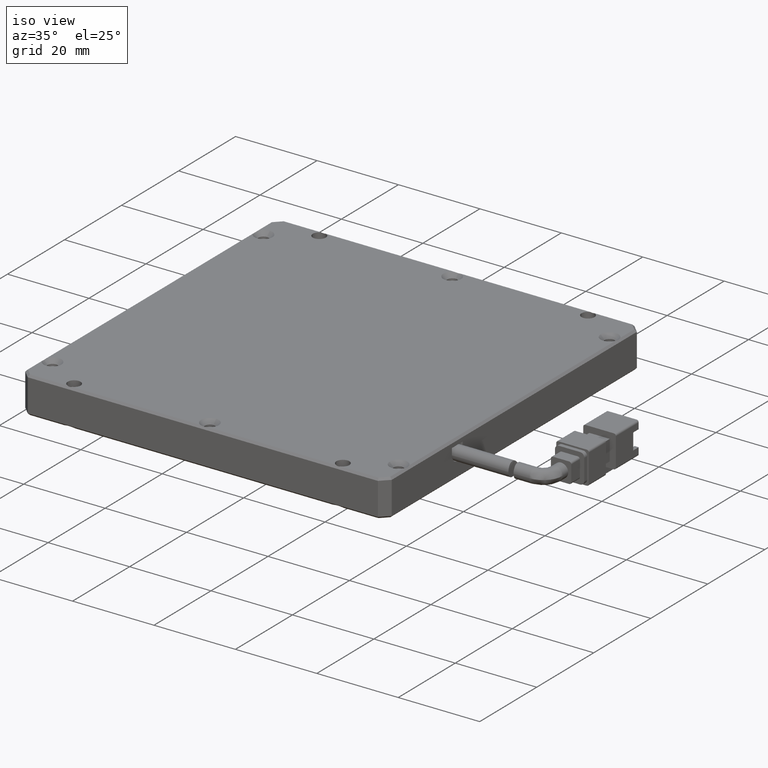
[diagram: clean part render]
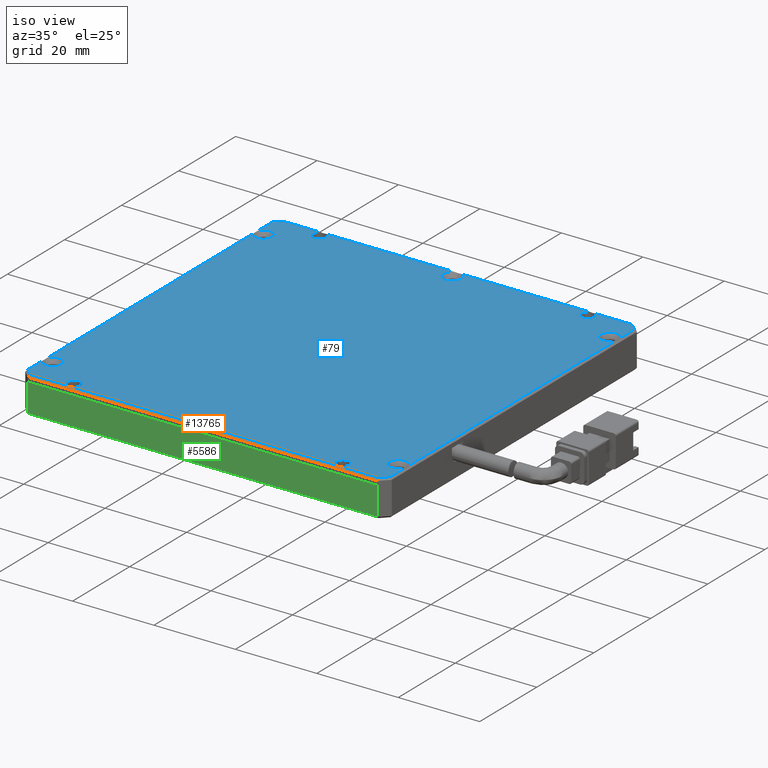
[diagram: same view with three faces highlighted in distinct colors, each labeled with its STEP entity id]
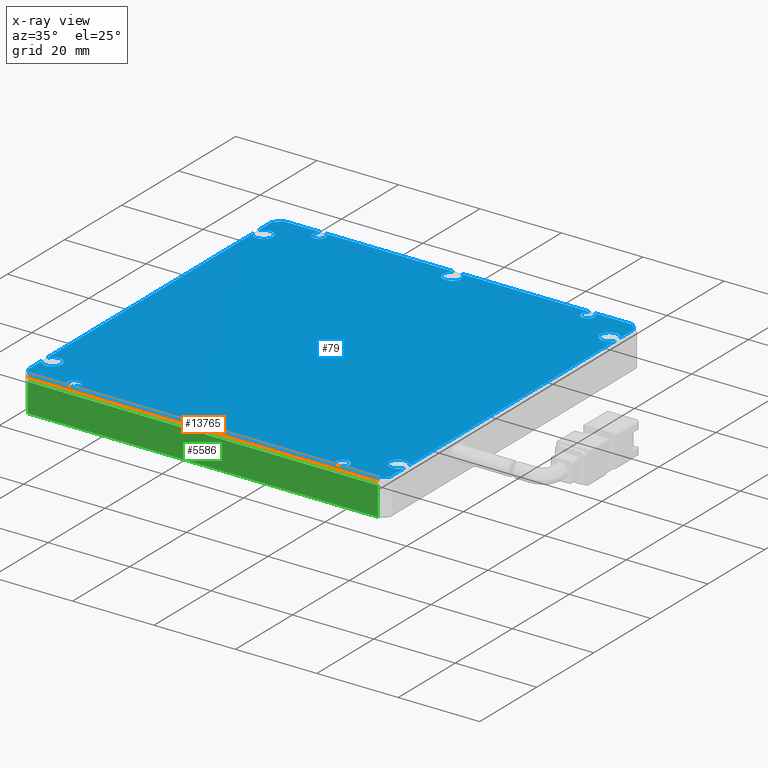
[diagram: x-ray of the same camera — body ghosted, the three highlighted faces saturated]
A machine part, iso view with three faces highlighted in distinct colors.
The next image is the same camera in x-ray (body ghosted, the three faces saturated) — at least one of them is partly hidden behind the body in this view.
Their STEP definitions:

[orange] entity #13765 — the highlighted planar face has unit normal (0, 0.7071, -0.7071).
#34 = DIRECTION ( 'NONE',  ( 1.000000000000000000, -0.0000000000000000000, 0.0000000000000000000 ) ) ;
#67 = CARTESIAN_POINT ( 'NONE',  ( -31.16274412037793700, -16.55999999997564500, 6.000000000035044900 ) ) ;
#111 = ORIENTED_EDGE ( 'NONE', *, *, #6922, .T. ) ;
#292 = DIRECTION ( 'NONE',  ( 1.000000000000000000, 0.0000000000000000000, -0.0000000000000000000 ) ) ;
#388 = ORIENTED_EDGE ( 'NONE', *, *, #2894, .F. ) ;
#594 = ORIENTED_EDGE ( 'NONE', *, *, #15575, .F. ) ;
#648 = CARTESIAN_POINT ( 'NONE',  ( -65.63603569554217600, -16.56000000000000600, 6.000000000000001800 ) ) ;
#679 = EDGE_CURVE ( 'NONE', #10660, #14766, #2501, .T. ) ;
#683 = CARTESIAN_POINT ( 'NONE',  ( -32.69620363494183800, -16.62537169989350600, 5.934628300106498800 ) ) ;
#902 = CARTESIAN_POINT ( 'NONE',  ( -65.63603569554217600, -16.56000000000000600, 6.000000000000001800 ) ) ;
#1172 = VERTEX_POINT ( 'NONE', #11381 ) ;
#1319 = VERTEX_POINT ( 'NONE', #14077 ) ;
#1510 = B_SPLINE_CURVE_WITH_KNOTS ( 'NONE', 3,
 ( #13921, #15328, #6990, #16761, #8383, #67 ),
 .UNSPECIFIED., .F., .F.,
 ( 4, 2, 4 ),
 ( 0.0009271194676587006200, 0.001387774260542111800, 0.001848429053425523100 ),
 .UNSPECIFIED. ) ;
#1883 = VERTEX_POINT ( 'NONE', #2351 ) ;
#2138 = DIRECTION ( 'NONE',  ( 0.2810846377149773800, -0.6785983445458051400, -0.6785983445458238000 ) ) ;
#2263 = CARTESIAN_POINT ( 'NONE',  ( 10.71363395955411800, -16.56000000000000600, 6.000000000000000900 ) ) ;
#2294 = EDGE_CURVE ( 'NONE', #15525, #1172, #12211, .T. ) ;
#2351 = CARTESIAN_POINT ( 'NONE',  ( 10.92074074074077200, -17.05999999999998500, 5.499999999999992000 ) ) ;
#2501 = LINE ( 'NONE', #17683, #6196 ) ;
#2629 = CARTESIAN_POINT ( 'NONE',  ( -77.07925925925924600, -16.56000000000000600, 6.000000000000001800 ) ) ;
#2819 = VECTOR ( 'NONE', #16567, 1000.000000000000000 ) ;
#2894 = EDGE_CURVE ( 'NONE', #7905, #1883, #4976, .T. ) ;
#2906 = VERTEX_POINT ( 'NONE', #902 ) ;
#2978 = CARTESIAN_POINT ( 'NONE',  ( -77.07925925925924600, -17.05999999999999200, 5.500000000000000900 ) ) ;
#3455 = CARTESIAN_POINT ( 'NONE',  ( -75.07925925925923100, -17.05999999999999200, 5.499999999999995600 ) ) ;
#3456 = VERTEX_POINT ( 'NONE', #7442 ) ;
#3487 = CARTESIAN_POINT ( 'NONE',  ( -32.07925925925925300, -16.65999999995137400, 5.900000000048631700 ) ) ;
#3606 = CARTESIAN_POINT ( 'NONE',  ( -31.16274412037793700, -16.55999999997564500, 6.000000000035044900 ) ) ;
#3904 = EDGE_CURVE ( 'NONE', #1319, #7315, #16522, .T. ) ;
#3996 = EDGE_LOOP ( 'NONE', ( #17884, #111, #388, #594, #17666, #17110, #14705, #14463, #13911, #13530, #12267 ) ) ;
#4297 = PLANE ( 'NONE',  #5216 ) ;
#4365 = CARTESIAN_POINT ( 'NONE',  ( -77.07925925925924600, -16.56000000000000600, 6.000000000000000900 ) ) ;
#4369 = LINE ( 'NONE', #2978, #11348 ) ;
#4976 = LINE ( 'NONE', #2263, #15196 ) ;
#4997 = LINE ( 'NONE', #13885, #8701 ) ;
#5216 = AXIS2_PLACEMENT_3D ( 'NONE', #4365, #14095, #5786 ) ;
#5431 = VECTOR ( 'NONE', #6846, 1000.000000000000000 ) ;
#5469 = CARTESIAN_POINT ( 'NONE',  ( -77.07925925925924600, -16.56000000000000600, 6.000000000000000900 ) ) ;
#5786 = DIRECTION ( 'NONE',  ( 0.0000000000000000000, 0.7071067811865378000, 0.7071067811865573400 ) ) ;
#5889 = EDGE_CURVE ( 'NONE', #3456, #12714, #1510, .T. ) ;
#5895 = CARTESIAN_POINT ( 'NONE',  ( 10.71363395955413000, -16.56000000000000600, 6.000000000000007100 ) ) ;
#6196 = VECTOR ( 'NONE', #17667, 1000.000000000000100 ) ;
#6605 = FACE_OUTER_BOUND ( 'NONE', #3996, .T. ) ;
#6782 =( BOUNDED_CURVE ( )  B_SPLINE_CURVE ( 3, ( #15906, #17332, #8953, #648 ),
 .UNSPECIFIED., .F., .T. ) 
 B_SPLINE_CURVE_WITH_KNOTS ( ( 4, 4 ),
 ( 2.786171451899620300, 3.497013855279965900 ),
 .UNSPECIFIED. ) 
 CURVE ( )  GEOMETRIC_REPRESENTATION_ITEM ( )  RATIONAL_B_SPLINE_CURVE ( ( 1.000000000000000000, 0.9583333333333451400, 0.9583333333333451400, 1.000000000000000000 ) ) 
 REPRESENTATION_ITEM ( '' )  );
#6846 = DIRECTION ( 'NONE',  ( 1.000000000000000000, -0.0000000000000000000, 0.0000000000000000000 ) ) ;
#6922 = EDGE_CURVE ( 'NONE', #14766, #1883, #4369, .T. ) ;
#6990 = CARTESIAN_POINT ( 'NONE',  ( -31.76824371790128900, -16.65126632610723300, 5.908733673892771600 ) ) ;
#7122 = EDGE_CURVE ( 'NONE', #15525, #2906, #6782, .T. ) ;
#7315 = VERTEX_POINT ( 'NONE', #14856 ) ;
#7442 = CARTESIAN_POINT ( 'NONE',  ( -32.07925925925925300, -16.65999999995137400, 5.900000000048631700 ) ) ;
#7905 = VERTEX_POINT ( 'NONE', #5895 ) ;
#8318 = EDGE_CURVE ( 'NONE', #12714, #7315, #13889, .T. ) ;
#8383 = CARTESIAN_POINT ( 'NONE',  ( -31.31168598636424600, -16.59250177973431300, 5.967498220265697200 ) ) ;
#8701 = VECTOR ( 'NONE', #34, 1000.000000000000000 ) ;
#8953 = CARTESIAN_POINT ( 'NONE',  ( -65.27292062840112400, -16.69478260869561100, 5.865217391304383000 ) ) ;
#9017 = EDGE_CURVE ( 'NONE', #1172, #3456, #15366, .T. ) ;
#10077 = CARTESIAN_POINT ( 'NONE',  ( -74.87215247807265000, -16.56000000000000600, 6.000000000000000900 ) ) ;
#10398 = CARTESIAN_POINT ( 'NONE',  ( -32.99577439805226200, -16.55999999998931900, 6.000000000010687500 ) ) ;
#10639 = CARTESIAN_POINT ( 'NONE',  ( 0.3639643044578144700, -16.56000000000000600, 6.000000000000001800 ) ) ;
#10660 = VERTEX_POINT ( 'NONE', #10077 ) ;
#10820 = CARTESIAN_POINT ( 'NONE',  ( 0.7270793715988613800, -16.69478260869561800, 5.865217391304379500 ) ) ;
#10953 = CARTESIAN_POINT ( 'NONE',  ( -77.07925925925924600, -16.56000000000000600, 6.000000000000001800 ) ) ;
#11348 = VECTOR ( 'NONE', #292, 1000.000000000000000 ) ;
#11381 = CARTESIAN_POINT ( 'NONE',  ( -32.99577439805226200, -16.55999999998931900, 6.000000000010687500 ) ) ;
#11805 = CARTESIAN_POINT ( 'NONE',  ( -32.39093844776113000, -16.65999999995138100, 5.900000000048621900 ) ) ;
#11860 = DIRECTION ( 'NONE',  ( 1.000000000000000000, -0.0000000000000000000, 0.0000000000000000000 ) ) ;
#12211 = LINE ( 'NONE', #10953, #15479 ) ;
#12267 = ORIENTED_EDGE ( 'NONE', *, *, #12304, .F. ) ;
#12304 = EDGE_CURVE ( 'NONE', #10660, #2906, #17011, .T. ) ;
#12714 = VERTEX_POINT ( 'NONE', #3606 ) ;
#13530 = ORIENTED_EDGE ( 'NONE', *, *, #7122, .T. ) ;
#13695 = CARTESIAN_POINT ( 'NONE',  ( -64.52248282297632900, -16.56000000000000600, 6.000000000000001800 ) ) ;
#13765 = ADVANCED_FACE ( 'NONE', ( #6605 ), #4297, .F. ) ;
#13885 = CARTESIAN_POINT ( 'NONE',  ( -77.07925925925924600, -16.56000000000000600, 6.000000000000001800 ) ) ;
#13889 = LINE ( 'NONE', #2629, #2819 ) ;
#13911 = ORIENTED_EDGE ( 'NONE', *, *, #2294, .F. ) ;
#13921 = CARTESIAN_POINT ( 'NONE',  ( -32.07925925925925300, -16.65999999995137400, 5.900000000048631700 ) ) ;
#14077 = CARTESIAN_POINT ( 'NONE',  ( 1.477517177023685000, -16.56000000000000600, 6.000000000000001800 ) ) ;
#14095 = DIRECTION ( 'NONE',  ( 0.0000000000000000000, 0.7071067811865573400, -0.7071067811865378000 ) ) ;
#14114 = CARTESIAN_POINT ( 'NONE',  ( 1.114402109882637800, -16.69478260869561800, 5.865217391304379500 ) ) ;
#14463 = ORIENTED_EDGE ( 'NONE', *, *, #9017, .F. ) ;
#14705 = ORIENTED_EDGE ( 'NONE', *, *, #5889, .F. ) ;
#14766 = VERTEX_POINT ( 'NONE', #3455 ) ;
#14856 = CARTESIAN_POINT ( 'NONE',  ( 0.3639643044578144700, -16.56000000000000600, 6.000000000000001800 ) ) ;
#15196 = VECTOR ( 'NONE', #2138, 1000.000000000000100 ) ;
#15328 = CARTESIAN_POINT ( 'NONE',  ( -31.92439624854519300, -16.65999999995138500, 5.900000000048621000 ) ) ;
#15366 = B_SPLINE_CURVE_WITH_KNOTS ( 'NONE', 3,
 ( #10398, #683, #11805, #3487 ),
 .UNSPECIFIED., .F., .F.,
 ( 4, 4 ),
 ( 1.797755594376626200E-013, 0.0009271194676587006200 ),
 .UNSPECIFIED. ) ;
#15479 = VECTOR ( 'NONE', #11860, 1000.000000000000000 ) ;
#15525 = VERTEX_POINT ( 'NONE', #13695 ) ;
#15575 = EDGE_CURVE ( 'NONE', #1319, #7905, #4997, .T. ) ;
#15906 = CARTESIAN_POINT ( 'NONE',  ( -64.52248282297632900, -16.56000000000000600, 6.000000000000001800 ) ) ;
#16522 =( BOUNDED_CURVE ( )  B_SPLINE_CURVE ( 3, ( #17485, #14114, #10820, #10639 ),
 .UNSPECIFIED., .F., .F. ) 
 B_SPLINE_CURVE_WITH_KNOTS ( ( 4, 4 ),
 ( 2.786171451899612400, 3.497013855279973900 ),
 .UNSPECIFIED. ) 
 CURVE ( )  GEOMETRIC_REPRESENTATION_ITEM ( )  RATIONAL_B_SPLINE_CURVE ( ( 1.000000000000000000, 0.9583333333333432500, 0.9583333333333432500, 1.000000000000000000 ) ) 
 REPRESENTATION_ITEM ( '' )  );
#16567 = DIRECTION ( 'NONE',  ( 1.000000000000000000, -0.0000000000000000000, 0.0000000000000000000 ) ) ;
#16761 = CARTESIAN_POINT ( 'NONE',  ( -31.46251307384215300, -16.61749904155066200, 5.942500958449340200 ) ) ;
#17011 = LINE ( 'NONE', #5469, #5431 ) ;
#17110 = ORIENTED_EDGE ( 'NONE', *, *, #8318, .F. ) ;
#17332 = CARTESIAN_POINT ( 'NONE',  ( -64.88559789011736700, -16.69478260869561100, 5.865217391304383000 ) ) ;
#17485 = CARTESIAN_POINT ( 'NONE',  ( 1.477517177023685000, -16.56000000000000600, 6.000000000000001800 ) ) ;
#17666 = ORIENTED_EDGE ( 'NONE', *, *, #3904, .T. ) ;
#17667 = DIRECTION ( 'NONE',  ( -0.2810846377148714100, -0.6785983445458105800, -0.6785983445458624300 ) ) ;
#17683 = CARTESIAN_POINT ( 'NONE',  ( -74.87215247807263600, -16.56000000000001300, 5.999999999999994700 ) ) ;
#17884 = ORIENTED_EDGE ( 'NONE', *, *, #679, .T. ) ;

[blue] entity #79 — the highlighted planar face has unit normal (0, 0, -1).
#34 = DIRECTION ( 'NONE',  ( 1.000000000000000000, -0.0000000000000000000, 0.0000000000000000000 ) ) ;
#68 = ORIENTED_EDGE ( 'NONE', *, *, #14990, .T. ) ;
#79 = ADVANCED_FACE ( 'NONE', ( #5788 ), #3889, .F. ) ;
#87 = CARTESIAN_POINT ( 'NONE',  ( -65.07925925925926000, 70.93999999999999800, 6.000000000000001800 ) ) ;
#120 = DIRECTION ( 'NONE',  ( -0.0000000000000000000, 0.0000000000000000000, -1.000000000000000000 ) ) ;
#151 = CIRCLE ( 'NONE', #8730, 2.199999999918420100 ) ;
#175 = CARTESIAN_POINT ( 'NONE',  ( -64.52248282297632900, 72.44000000000001200, 6.000000000000001800 ) ) ;
#177 = VERTEX_POINT ( 'NONE', #11985 ) ;
#188 = DIRECTION ( 'NONE',  ( 0.0000000000000000000, -1.000000000000000000, 0.0000000000000000000 ) ) ;
#235 = CARTESIAN_POINT ( 'NONE',  ( -76.57925925925926000, 72.93999999999999800, 6.000000000000000900 ) ) ;
#255 = DIRECTION ( 'NONE',  ( -0.0000000000000000000, -4.928191693298675800E-017, -1.000000000000000000 ) ) ;
#324 = CARTESIAN_POINT ( 'NONE',  ( -32.07925925925925300, -14.56000000000000400, 6.000000000021374000 ) ) ;
#434 = VERTEX_POINT ( 'NONE', #3259 ) ;
#460 = ORIENTED_EDGE ( 'NONE', *, *, #13989, .T. ) ;
#575 = CARTESIAN_POINT ( 'NONE',  ( 12.42074074074076000, 72.93999999999999800, 6.000000000000001800 ) ) ;
#727 = DIRECTION ( 'NONE',  ( -0.0000000000000000000, 0.0000000000000000000, -1.000000000000000000 ) ) ;
#768 = AXIS2_PLACEMENT_3D ( 'NONE', #10324, #1995, #11720 ) ;
#902 = CARTESIAN_POINT ( 'NONE',  ( -65.63603569554217600, -16.56000000000000600, 6.000000000000001800 ) ) ;
#913 = CIRCLE ( 'NONE', #8759, 2.200000000013913000 ) ;
#989 = EDGE_CURVE ( 'NONE', #8636, #6866, #11420, .T. ) ;
#992 = ORIENTED_EDGE ( 'NONE', *, *, #4423, .T. ) ;
#1005 = DIRECTION ( 'NONE',  ( 1.000000000000000000, 0.0000000000000000000, 0.0000000000000000000 ) ) ;
#1062 = DIRECTION ( 'NONE',  ( -0.0000000000000000000, 0.0000000000000000000, -1.000000000000000000 ) ) ;
#1081 = LINE ( 'NONE', #1723, #8473 ) ;
#1172 = VERTEX_POINT ( 'NONE', #11381 ) ;
#1175 = CARTESIAN_POINT ( 'NONE',  ( -74.57925925925924600, 64.93999999999999800, 6.000000000021374000 ) ) ;
#1210 = DIRECTION ( 'NONE',  ( 0.0000000000000000000, 0.0000000000000000000, -1.000000000000000000 ) ) ;
#1287 = VERTEX_POINT ( 'NONE', #15404 ) ;
#1313 = CARTESIAN_POINT ( 'NONE',  ( 12.42074074074076000, 70.73289321881337300, 6.000000000000001800 ) ) ;
#1319 = VERTEX_POINT ( 'NONE', #14077 ) ;
#1356 = CARTESIAN_POINT ( 'NONE',  ( 0.3639643044578144700, 72.44000000000001200, 6.000000000000001800 ) ) ;
#1456 = EDGE_CURVE ( 'NONE', #7905, #2059, #2236, .T. ) ;
#1489 = DIRECTION ( 'NONE',  ( 1.000000000000000000, 0.0000000000000000000, 0.0000000000000000000 ) ) ;
#1521 = CARTESIAN_POINT ( 'NONE',  ( 2.520740740740739800, 70.93999999999999800, 6.000000000000001800 ) ) ;
#1546 = CARTESIAN_POINT ( 'NONE',  ( -66.67925925925924000, -15.05999999999999000, 6.000000000000001800 ) ) ;
#1586 = CARTESIAN_POINT ( 'NONE',  ( -76.57925925925924600, -14.85289321881338300, 5.999999999999994700 ) ) ;
#1594 = VERTEX_POINT ( 'NONE', #8325 ) ;
#1682 = CARTESIAN_POINT ( 'NONE',  ( -32.07925925925925300, -14.56000000000000400, 6.000000000021374000 ) ) ;
#1723 = CARTESIAN_POINT ( 'NONE',  ( -77.07925925925924600, 72.44000000000001200, 6.000000000000001800 ) ) ;
#1775 = ORIENTED_EDGE ( 'NONE', *, *, #14627, .T. ) ;
#1795 = LINE ( 'NONE', #9630, #8254 ) ;
#1943 = VERTEX_POINT ( 'NONE', #6279 ) ;
#1995 = DIRECTION ( 'NONE',  ( -0.0000000000000000000, 0.0000000000000000000, -1.000000000000000000 ) ) ;
#2015 = AXIS2_PLACEMENT_3D ( 'NONE', #14119, #5810, #15517 ) ;
#2059 = VERTEX_POINT ( 'NONE', #11613 ) ;
#2092 = LINE ( 'NONE', #1586, #12295 ) ;
#2112 = DIRECTION ( 'NONE',  ( 0.7071067811865520100, 0.7071067811865431300, -2.514910967507945700E-015 ) ) ;
#2191 = VERTEX_POINT ( 'NONE', #11304 ) ;
#2236 = LINE ( 'NONE', #8841, #5935 ) ;
#2294 = EDGE_CURVE ( 'NONE', #15525, #1172, #12211, .T. ) ;
#2307 = AXIS2_PLACEMENT_3D ( 'NONE', #12791, #4440, #14174 ) ;
#2346 = ORIENTED_EDGE ( 'NONE', *, *, #14831, .T. ) ;
#2473 = EDGE_CURVE ( 'NONE', #2191, #16635, #12646, .T. ) ;
#2485 = AXIS2_PLACEMENT_3D ( 'NONE', #15097, #6751, #16511 ) ;
#2547 = EDGE_CURVE ( 'NONE', #8087, #16817, #7189, .T. ) ;
#2569 = DIRECTION ( 'NONE',  ( 0.0000000000000000000, -1.000000000000000000, 0.0000000000000000000 ) ) ;
#2629 = CARTESIAN_POINT ( 'NONE',  ( -77.07925925925924600, -16.56000000000000600, 6.000000000000001800 ) ) ;
#2681 = AXIS2_PLACEMENT_3D ( 'NONE', #3583, #13269, #4932 ) ;
#2690 = ORIENTED_EDGE ( 'NONE', *, *, #2547, .T. ) ;
#2799 = VERTEX_POINT ( 'NONE', #1521 ) ;
#2802 = VERTEX_POINT ( 'NONE', #175 ) ;
#2819 = VECTOR ( 'NONE', #16567, 1000.000000000000000 ) ;
#2906 = VERTEX_POINT ( 'NONE', #902 ) ;
#2910 = VECTOR ( 'NONE', #16687, 1000.000000000000100 ) ;
#2919 = VERTEX_POINT ( 'NONE', #3543 ) ;
#2993 = DIRECTION ( 'NONE',  ( 0.7071067811865445800, -0.7071067811865503500, 0.0000000000000000000 ) ) ;
#2999 = ORIENTED_EDGE ( 'NONE', *, *, #13010, .T. ) ;
#3053 = ORIENTED_EDGE ( 'NONE', *, *, #6303, .T. ) ;
#3056 = AXIS2_PLACEMENT_3D ( 'NONE', #7579, #17343, #8975 ) ;
#3095 = DIRECTION ( 'NONE',  ( 3.154042683711152100E-015, -1.000000000000000000, 0.0000000000000000000 ) ) ;
#3107 = CARTESIAN_POINT ( 'NONE',  ( -74.57925925925924600, -9.059999999999991600, 6.000000000021374000 ) ) ;
#3259 = CARTESIAN_POINT ( 'NONE',  ( -76.57925925924857300, -8.143484860977787700, 6.000000000010687500 ) ) ;
#3323 = CIRCLE ( 'NONE', #768, 2.199999999936586000 ) ;
#3385 = CARTESIAN_POINT ( 'NONE',  ( 0.9207407407407497400, 70.93999999999999800, 6.000000000000001800 ) ) ;
#3432 = CARTESIAN_POINT ( 'NONE',  ( -77.07925925925924600, 72.44000000000001200, 6.000000000000000900 ) ) ;
#3442 = AXIS2_PLACEMENT_3D ( 'NONE', #3869, #13577, #5242 ) ;
#3509 = EDGE_CURVE ( 'NONE', #17714, #10181, #14699, .T. ) ;
#3527 = AXIS2_PLACEMENT_3D ( 'NONE', #1682, #11418, #3095 ) ;
#3538 = DIRECTION ( 'NONE',  ( -1.000000000000000000, -0.0000000000000000000, -0.0000000000000000000 ) ) ;
#3543 = CARTESIAN_POINT ( 'NONE',  ( -63.47925925925926500, 70.93999999999999800, 6.000000000000001800 ) ) ;
#3575 = DIRECTION ( 'NONE',  ( -0.0000000000000000000, -1.000000000000000000, -0.0000000000000000000 ) ) ;
#3577 = VECTOR ( 'NONE', #4829, 1000.000000000000000 ) ;
#3583 = CARTESIAN_POINT ( 'NONE',  ( -74.57925925925924600, 64.93999999999999800, 6.000000000021374000 ) ) ;
#3606 = CARTESIAN_POINT ( 'NONE',  ( -31.16274412037793700, -16.55999999997564500, 6.000000000035044900 ) ) ;
#3645 = CIRCLE ( 'NONE', #14175, 2.199999999936587800 ) ;
#3647 = DIRECTION ( 'NONE',  ( -1.000000000000000000, -0.0000000000000000000, -0.0000000000000000000 ) ) ;
#3717 = CARTESIAN_POINT ( 'NONE',  ( 12.42074074073007500, 64.02348486116335400, 6.000000000010688300 ) ) ;
#3783 = CIRCLE ( 'NONE', #11320, 1.599999999999990300 ) ;
#3844 = CARTESIAN_POINT ( 'NONE',  ( -76.57925925925926000, -14.85289321881337300, 5.999999999999999100 ) ) ;
#3868 = LINE ( 'NONE', #11946, #11282 ) ;
#3869 = CARTESIAN_POINT ( 'NONE',  ( -32.07925925925925300, 70.44000000000001200, 6.000000000021374000 ) ) ;
#3889 = PLANE ( 'NONE',  #5172 ) ;
#3937 = DIRECTION ( 'NONE',  ( -0.0000000000000000000, -4.928191693084763900E-017, -1.000000000000000000 ) ) ;
#4043 = DIRECTION ( 'NONE',  ( 0.0000000000000000000, 0.0000000000000000000, -1.000000000000000000 ) ) ;
#4050 = CARTESIAN_POINT ( 'NONE',  ( -65.07925925925926000, -15.05999999999999000, 6.000000000000001800 ) ) ;
#4057 = ORIENTED_EDGE ( 'NONE', *, *, #17100, .T. ) ;
#4124 = AXIS2_PLACEMENT_3D ( 'NONE', #12369, #4043, #13740 ) ;
#4136 = EDGE_LOOP ( 'NONE', ( #4964, #14685, #6882, #10690, #6802, #5625, #1775, #16370, #17669, #15185, #11112, #13398, #13156, #12753, #10111, #9265, #7510, #6230, #5304, #4057, #2690, #992, #11192, #68, #17528, #15807, #14658, #14269, #10338, #9018, #8360, #460, #14686, #7378, #8452, #16890, #3053, #13855, #13039, #10811, #9070, #2999, #2346 ) ) ;
#4193 = VERTEX_POINT ( 'NONE', #8094 ) ;
#4197 = CARTESIAN_POINT ( 'NONE',  ( -74.87215247807269200, 72.44000000000001200, 6.000000000000000000 ) ) ;
#4264 = CARTESIAN_POINT ( 'NONE',  ( -0.6792592592592405800, -15.05999999999999000, 6.000000000000001800 ) ) ;
#4346 = AXIS2_PLACEMENT_3D ( 'NONE', #4050, #13754, #5435 ) ;
#4423 = EDGE_CURVE ( 'NONE', #16817, #14921, #17705, .T. ) ;
#4440 = DIRECTION ( 'NONE',  ( 0.0000000000000000000, 0.0000000000000000000, -1.000000000000000000 ) ) ;
#4481 = DIRECTION ( 'NONE',  ( 1.000000000000000000, 0.0000000000000000000, 0.0000000000000000000 ) ) ;
#4513 = CARTESIAN_POINT ( 'NONE',  ( -32.99577439814055400, 72.43999999997566900, 6.000000000035041300 ) ) ;
#4571 = EDGE_CURVE ( 'NONE', #16635, #5133, #9603, .T. ) ;
#4734 = DIRECTION ( 'NONE',  ( 1.000000000000000000, 0.0000000000000000000, 0.0000000000000000000 ) ) ;
#4829 = DIRECTION ( 'NONE',  ( 0.0000000000000000000, 1.000000000000000000, 0.0000000000000000000 ) ) ;
#4932 = DIRECTION ( 'NONE',  ( 0.0000000000000000000, -1.000000000000000000, 0.0000000000000000000 ) ) ;
#4946 = EDGE_CURVE ( 'NONE', #17879, #12714, #151, .T. ) ;
#4964 = ORIENTED_EDGE ( 'NONE', *, *, #9858, .T. ) ;
#4997 = LINE ( 'NONE', #13885, #8701 ) ;
#5059 = CARTESIAN_POINT ( 'NONE',  ( 12.42074074073007500, -9.976515138836632000, 6.000000000010686600 ) ) ;
#5133 = VERTEX_POINT ( 'NONE', #11185 ) ;
#5172 = AXIS2_PLACEMENT_3D ( 'NONE', #5267, #5288, #5303 ) ;
#5242 = DIRECTION ( 'NONE',  ( 0.0000000000000000000, -1.000000000000000000, 0.0000000000000000000 ) ) ;
#5267 = CARTESIAN_POINT ( 'NONE',  ( -77.07925925925924600, 72.93999999999999800, 6.000000000000000900 ) ) ;
#5288 = DIRECTION ( 'NONE',  ( 0.0000000000000000000, 0.0000000000000000000, -1.000000000000000000 ) ) ;
#5303 = DIRECTION ( 'NONE',  ( -1.000000000000000000, 0.0000000000000000000, -0.0000000000000000000 ) ) ;
#5304 = ORIENTED_EDGE ( 'NONE', *, *, #10075, .T. ) ;
#5430 = VERTEX_POINT ( 'NONE', #15600 ) ;
#5431 = VECTOR ( 'NONE', #6846, 1000.000000000000000 ) ;
#5435 = DIRECTION ( 'NONE',  ( 1.000000000000000000, 0.0000000000000000000, 0.0000000000000000000 ) ) ;
#5469 = CARTESIAN_POINT ( 'NONE',  ( -77.07925925925924600, -16.56000000000000600, 6.000000000000000900 ) ) ;
#5508 = DIRECTION ( 'NONE',  ( 0.0000000000000000000, 1.000000000000000000, 0.0000000000000000000 ) ) ;
#5606 = EDGE_CURVE ( 'NONE', #6643, #13226, #5993, .T. ) ;
#5614 = AXIS2_PLACEMENT_3D ( 'NONE', #9528, #1210, #10955 ) ;
#5625 = ORIENTED_EDGE ( 'NONE', *, *, #2294, .T. ) ;
#5726 = DIRECTION ( 'NONE',  ( -1.000000000000000000, -0.0000000000000000000, -0.0000000000000000000 ) ) ;
#5762 = DIRECTION ( 'NONE',  ( -0.0000000000000000000, -1.000000000000000000, -0.0000000000000000000 ) ) ;
#5788 = FACE_OUTER_BOUND ( 'NONE', #4136, .T. ) ;
#5810 = DIRECTION ( 'NONE',  ( -0.0000000000000000000, -4.928191693298675800E-017, -1.000000000000000000 ) ) ;
#5853 = CARTESIAN_POINT ( 'NONE',  ( -77.07925925925924600, 72.44000000000001200, 6.000000000000000900 ) ) ;
#5895 = CARTESIAN_POINT ( 'NONE',  ( 10.71363395955413000, -16.56000000000000600, 6.000000000000007100 ) ) ;
#5926 = VERTEX_POINT ( 'NONE', #1546 ) ;
#5935 = VECTOR ( 'NONE', #2112, 999.9999999999998900 ) ;
#5948 = EDGE_CURVE ( 'NONE', #10181, #7136, #12712, .T. ) ;
#5993 = CIRCLE ( 'NONE', #2681, 2.200000000013913000 ) ;
#6048 = AXIS2_PLACEMENT_3D ( 'NONE', #3107, #12821, #4481 ) ;
#6230 = ORIENTED_EDGE ( 'NONE', *, *, #14287, .T. ) ;
#6279 = CARTESIAN_POINT ( 'NONE',  ( -76.57925925924857300, 65.85651513902219300, 6.000000000010687500 ) ) ;
#6303 = EDGE_CURVE ( 'NONE', #1943, #13722, #913, .T. ) ;
#6443 = CARTESIAN_POINT ( 'NONE',  ( -65.07925925925926000, -15.05999999999999000, 6.000000000000001800 ) ) ;
#6457 = CIRCLE ( 'NONE', #10199, 1.599999999999990300 ) ;
#6487 = CIRCLE ( 'NONE', #11338, 1.599999999999990300 ) ;
#6518 = EDGE_CURVE ( 'NONE', #5133, #1943, #16355, .T. ) ;
#6552 = VERTEX_POINT ( 'NONE', #14701 ) ;
#6643 = VERTEX_POINT ( 'NONE', #12084 ) ;
#6657 = EDGE_CURVE ( 'NONE', #7136, #16257, #15935, .T. ) ;
#6751 = DIRECTION ( 'NONE',  ( 0.0000000000000000000, 0.0000000000000000000, -1.000000000000000000 ) ) ;
#6753 = VERTEX_POINT ( 'NONE', #18006 ) ;
#6775 = EDGE_CURVE ( 'NONE', #2059, #8636, #1795, .T. ) ;
#6802 = ORIENTED_EDGE ( 'NONE', *, *, #18115, .T. ) ;
#6846 = DIRECTION ( 'NONE',  ( 1.000000000000000000, -0.0000000000000000000, 0.0000000000000000000 ) ) ;
#6866 = VERTEX_POINT ( 'NONE', #9883 ) ;
#6882 = ORIENTED_EDGE ( 'NONE', *, *, #8631, .T. ) ;
#6896 = CARTESIAN_POINT ( 'NONE',  ( -74.57925925925924600, 67.14000000001391300, 6.000000000021374000 ) ) ;
#6926 = CIRCLE ( 'NONE', #13330, 2.200000000013913000 ) ;
#6955 = CARTESIAN_POINT ( 'NONE',  ( 0.9207407407407497400, -15.05999999999999000, 6.000000000000001800 ) ) ;
#7047 = CARTESIAN_POINT ( 'NONE',  ( -65.07925925925926000, -15.05999999999999000, 6.000000000000001800 ) ) ;
#7136 = VERTEX_POINT ( 'NONE', #14562 ) ;
#7183 = DIRECTION ( 'NONE',  ( -1.000000000000000000, -0.0000000000000000000, -0.0000000000000000000 ) ) ;
#7189 = LINE ( 'NONE', #575, #17877 ) ;
#7208 = CARTESIAN_POINT ( 'NONE',  ( 12.42074074074076000, 72.93999999999999800, 6.000000000000001800 ) ) ;
#7249 = VECTOR ( 'NONE', #5762, 1000.000000000000000 ) ;
#7315 = VERTEX_POINT ( 'NONE', #14856 ) ;
#7378 = ORIENTED_EDGE ( 'NONE', *, *, #2473, .T. ) ;
#7510 = ORIENTED_EDGE ( 'NONE', *, *, #10779, .T. ) ;
#7562 = EDGE_CURVE ( 'NONE', #14921, #6552, #1081, .T. ) ;
#7579 = CARTESIAN_POINT ( 'NONE',  ( -65.07925925925926000, 70.93999999999999800, 6.000000000000001800 ) ) ;
#7603 = CIRCLE ( 'NONE', #2307, 1.599999999999990300 ) ;
#7670 = LINE ( 'NONE', #12692, #7249 ) ;
#7722 = VECTOR ( 'NONE', #5726, 1000.000000000000000 ) ;
#7725 = CARTESIAN_POINT ( 'NONE',  ( -72.37925925924533000, -9.059999999999991600, 6.000000000021374000 ) ) ;
#7842 = DIRECTION ( 'NONE',  ( 1.000000000000000000, 1.084202172485510900E-015, 0.0000000000000000000 ) ) ;
#7905 = VERTEX_POINT ( 'NONE', #5895 ) ;
#8087 = VERTEX_POINT ( 'NONE', #10495 ) ;
#8094 = CARTESIAN_POINT ( 'NONE',  ( 12.42074074072067800, -8.143484861094615100, 6.000000000030775400 ) ) ;
#8098 = EDGE_CURVE ( 'NONE', #16257, #2802, #3868, .T. ) ;
#8254 = VECTOR ( 'NONE', #5508, 1000.000000000000000 ) ;
#8258 = EDGE_CURVE ( 'NONE', #13722, #6643, #6926, .T. ) ;
#8318 = EDGE_CURVE ( 'NONE', #12714, #7315, #13889, .T. ) ;
#8325 = CARTESIAN_POINT ( 'NONE',  ( -63.47925925925926500, -15.05999999999999000, 6.000000000000001800 ) ) ;
#8347 = DIRECTION ( 'NONE',  ( 1.000000000000000000, 0.0000000000000000000, 0.0000000000000000000 ) ) ;
#8360 = ORIENTED_EDGE ( 'NONE', *, *, #10945, .T. ) ;
#8426 = DIRECTION ( 'NONE',  ( 1.000000000000000000, 0.0000000000000000000, 0.0000000000000000000 ) ) ;
#8427 = CARTESIAN_POINT ( 'NONE',  ( -74.57925925925924600, -9.059999999999991600, 6.000000000021374000 ) ) ;
#8429 = CIRCLE ( 'NONE', #15251, 1.599999999999990300 ) ;
#8452 = ORIENTED_EDGE ( 'NONE', *, *, #4571, .T. ) ;
#8473 = VECTOR ( 'NONE', #7183, 1000.000000000000000 ) ;
#8579 = CIRCLE ( 'NONE', #11816, 2.199999999936587800 ) ;
#8631 = EDGE_CURVE ( 'NONE', #2906, #5926, #8429, .T. ) ;
#8636 = VERTEX_POINT ( 'NONE', #5059 ) ;
#8701 = VECTOR ( 'NONE', #34, 1000.000000000000000 ) ;
#8730 = AXIS2_PLACEMENT_3D ( 'NONE', #324, #255, #188 ) ;
#8759 = AXIS2_PLACEMENT_3D ( 'NONE', #12272, #3937, #13637 ) ;
#8841 = CARTESIAN_POINT ( 'NONE',  ( 10.71363395955411800, -16.56000000000001300, 6.000000000000010700 ) ) ;
#8958 = LINE ( 'NONE', #9062, #12227 ) ;
#8975 = DIRECTION ( 'NONE',  ( 1.000000000000000000, 0.0000000000000000000, 0.0000000000000000000 ) ) ;
#9018 = ORIENTED_EDGE ( 'NONE', *, *, #8098, .T. ) ;
#9030 = CARTESIAN_POINT ( 'NONE',  ( 10.42074074074077200, 64.93999999999999800, 6.000000000021375800 ) ) ;
#9062 = CARTESIAN_POINT ( 'NONE',  ( -76.57925925925926000, 72.93999999999999800, 6.000000000000001800 ) ) ;
#9070 = ORIENTED_EDGE ( 'NONE', *, *, #12372, .T. ) ;
#9178 = VECTOR ( 'NONE', #15944, 1000.000000000000000 ) ;
#9265 = ORIENTED_EDGE ( 'NONE', *, *, #989, .T. ) ;
#9297 = CARTESIAN_POINT ( 'NONE',  ( 10.71363395955414400, 72.43999999999998400, 5.999999999999999100 ) ) ;
#9321 = DIRECTION ( 'NONE',  ( 0.0000000000000000000, 0.0000000000000000000, -1.000000000000000000 ) ) ;
#9380 = EDGE_CURVE ( 'NONE', #2799, #1287, #11027, .T. ) ;
#9387 = CARTESIAN_POINT ( 'NONE',  ( 10.42074074074077200, 64.93999999999999800, 6.000000000021375800 ) ) ;
#9528 = CARTESIAN_POINT ( 'NONE',  ( 0.9207407407407497400, 70.93999999999999800, 6.000000000000001800 ) ) ;
#9603 = LINE ( 'NONE', #16735, #9178 ) ;
#9630 = CARTESIAN_POINT ( 'NONE',  ( 12.42074074074076000, 72.93999999999999800, 6.000000000000000900 ) ) ;
#9807 = DIRECTION ( 'NONE',  ( 0.0000000000000000000, 0.0000000000000000000, -1.000000000000000000 ) ) ;
#9847 = DIRECTION ( 'NONE',  ( 1.000000000000000000, -1.577021341787124000E-015, 0.0000000000000000000 ) ) ;
#9858 = EDGE_CURVE ( 'NONE', #12219, #10660, #2092, .T. ) ;
#9883 = CARTESIAN_POINT ( 'NONE',  ( 8.220740740804185300, -9.059999999999991600, 6.000000000021374000 ) ) ;
#10075 = EDGE_CURVE ( 'NONE', #17047, #177, #8579, .T. ) ;
#10077 = CARTESIAN_POINT ( 'NONE',  ( -74.87215247807265000, -16.56000000000000600, 6.000000000000000900 ) ) ;
#10111 = ORIENTED_EDGE ( 'NONE', *, *, #6775, .T. ) ;
#10119 = CARTESIAN_POINT ( 'NONE',  ( -76.57925925924664100, 64.02348486096892100, 6.000000000012625500 ) ) ;
#10181 = VERTEX_POINT ( 'NONE', #16178 ) ;
#10199 = AXIS2_PLACEMENT_3D ( 'NONE', #7047, #16816, #8426 ) ;
#10324 = CARTESIAN_POINT ( 'NONE',  ( 10.42074074074077200, -9.059999999999991600, 6.000000000021374000 ) ) ;
#10329 = CIRCLE ( 'NONE', #3056, 1.599999999999990300 ) ;
#10338 = ORIENTED_EDGE ( 'NONE', *, *, #6657, .T. ) ;
#10382 = EDGE_CURVE ( 'NONE', #13226, #434, #7670, .T. ) ;
#10443 = DIRECTION ( 'NONE',  ( 1.000000000000000000, 0.0000000000000000000, 0.0000000000000000000 ) ) ;
#10495 = CARTESIAN_POINT ( 'NONE',  ( 12.42074074072067800, 65.85651513890536500, 6.000000000030774500 ) ) ;
#10634 = CIRCLE ( 'NONE', #4346, 1.599999999999990300 ) ;
#10660 = VERTEX_POINT ( 'NONE', #10077 ) ;
#10678 = CIRCLE ( 'NONE', #4124, 1.599999999999990300 ) ;
#10690 = ORIENTED_EDGE ( 'NONE', *, *, #16640, .T. ) ;
#10779 = EDGE_CURVE ( 'NONE', #6866, #4193, #3323, .T. ) ;
#10809 = DIRECTION ( 'NONE',  ( 1.000000000000000000, 0.0000000000000000000, 0.0000000000000000000 ) ) ;
#10811 = ORIENTED_EDGE ( 'NONE', *, *, #10382, .T. ) ;
#10905 = DIRECTION ( 'NONE',  ( -0.0000000000000000000, -4.928191693084763900E-017, -1.000000000000000000 ) ) ;
#10920 = AXIS2_PLACEMENT_3D ( 'NONE', #13351, #13578, #15153 ) ;
#10945 = EDGE_CURVE ( 'NONE', #2802, #2919, #10678, .T. ) ;
#10953 = CARTESIAN_POINT ( 'NONE',  ( -77.07925925925924600, -16.56000000000000600, 6.000000000000001800 ) ) ;
#10955 = DIRECTION ( 'NONE',  ( 1.000000000000000000, 0.0000000000000000000, 0.0000000000000000000 ) ) ;
#11027 = CIRCLE ( 'NONE', #15027, 1.599999999999990300 ) ;
#11112 = ORIENTED_EDGE ( 'NONE', *, *, #12423, .T. ) ;
#11185 = CARTESIAN_POINT ( 'NONE',  ( -76.57925925925926000, 70.73289321881344400, 6.000000000000002700 ) ) ;
#11192 = ORIENTED_EDGE ( 'NONE', *, *, #7562, .T. ) ;
#11282 = VECTOR ( 'NONE', #3647, 1000.000000000000000 ) ;
#11304 = CARTESIAN_POINT ( 'NONE',  ( -65.63603569554217600, 72.44000000000001200, 6.000000000000001800 ) ) ;
#11320 = AXIS2_PLACEMENT_3D ( 'NONE', #87, #9807, #1489 ) ;
#11338 = AXIS2_PLACEMENT_3D ( 'NONE', #17690, #9321, #1005 ) ;
#11381 = CARTESIAN_POINT ( 'NONE',  ( -32.99577439805226200, -16.55999999998931900, 6.000000000010687500 ) ) ;
#11418 = DIRECTION ( 'NONE',  ( -0.0000000000000000000, -4.928191693298675800E-017, -1.000000000000000000 ) ) ;
#11420 = CIRCLE ( 'NONE', #10920, 2.199999999936586000 ) ;
#11441 = DIRECTION ( 'NONE',  ( -0.0000000000000000000, -1.000000000000000000, -0.0000000000000000000 ) ) ;
#11613 = CARTESIAN_POINT ( 'NONE',  ( 12.42074074074076000, -14.85289321881339000, 6.000000000000002700 ) ) ;
#11655 = VERTEX_POINT ( 'NONE', #4264 ) ;
#11720 = DIRECTION ( 'NONE',  ( 1.000000000000000000, 0.0000000000000000000, 0.0000000000000000000 ) ) ;
#11816 = AXIS2_PLACEMENT_3D ( 'NONE', #9030, #727, #10443 ) ;
#11860 = DIRECTION ( 'NONE',  ( 1.000000000000000000, -0.0000000000000000000, 0.0000000000000000000 ) ) ;
#11946 = CARTESIAN_POINT ( 'NONE',  ( -77.07925925925924600, 72.44000000000001200, 6.000000000000001800 ) ) ;
#11955 = AXIS2_PLACEMENT_3D ( 'NONE', #8427, #120, #9847 ) ;
#11985 = CARTESIAN_POINT ( 'NONE',  ( 8.220740740804183500, 64.93999999999999800, 6.000000000021375800 ) ) ;
#12004 = CIRCLE ( 'NONE', #5614, 1.599999999999990300 ) ;
#12084 = CARTESIAN_POINT ( 'NONE',  ( -74.57925925925924600, 62.73999999998608200, 6.000000000021374000 ) ) ;
#12196 = VECTOR ( 'NONE', #3538, 1000.000000000000000 ) ;
#12211 = LINE ( 'NONE', #10953, #15479 ) ;
#12219 = VERTEX_POINT ( 'NONE', #3844 ) ;
#12222 = VECTOR ( 'NONE', #11441, 1000.000000000000000 ) ;
#12227 = VECTOR ( 'NONE', #3575, 1000.000000000000000 ) ;
#12272 = CARTESIAN_POINT ( 'NONE',  ( -74.57925925925924600, 64.93999999999999800, 6.000000000021374000 ) ) ;
#12295 = VECTOR ( 'NONE', #2993, 1000.000000000000100 ) ;
#12304 = EDGE_CURVE ( 'NONE', #10660, #2906, #17011, .T. ) ;
#12369 = CARTESIAN_POINT ( 'NONE',  ( -65.07925925925926000, 70.93999999999999800, 6.000000000000001800 ) ) ;
#12372 = EDGE_CURVE ( 'NONE', #434, #18062, #13465, .T. ) ;
#12423 = EDGE_CURVE ( 'NONE', #11655, #17210, #7603, .T. ) ;
#12646 = LINE ( 'NONE', #3432, #12196 ) ;
#12692 = CARTESIAN_POINT ( 'NONE',  ( -76.57925925925926000, 72.93999999999999800, 6.000000000000001800 ) ) ;
#12712 = CIRCLE ( 'NONE', #2015, 2.199999999918420100 ) ;
#12714 = VERTEX_POINT ( 'NONE', #3606 ) ;
#12753 = ORIENTED_EDGE ( 'NONE', *, *, #1456, .T. ) ;
#12791 = CARTESIAN_POINT ( 'NONE',  ( 0.9207407407407497400, -15.05999999999999000, 6.000000000000001800 ) ) ;
#12821 = DIRECTION ( 'NONE',  ( -0.0000000000000000000, 0.0000000000000000000, -1.000000000000000000 ) ) ;
#13010 = EDGE_CURVE ( 'NONE', #18062, #5430, #15379, .T. ) ;
#13039 = ORIENTED_EDGE ( 'NONE', *, *, #5606, .T. ) ;
#13093 = DIRECTION ( 'NONE',  ( 0.0000000000000000000, 0.0000000000000000000, -1.000000000000000000 ) ) ;
#13130 = CIRCLE ( 'NONE', #3527, 2.199999999918420100 ) ;
#13156 = ORIENTED_EDGE ( 'NONE', *, *, #15575, .T. ) ;
#13226 = VERTEX_POINT ( 'NONE', #10119 ) ;
#13269 = DIRECTION ( 'NONE',  ( -0.0000000000000000000, -4.928191693084763900E-017, -1.000000000000000000 ) ) ;
#13330 = AXIS2_PLACEMENT_3D ( 'NONE', #1175, #10905, #2569 ) ;
#13351 = CARTESIAN_POINT ( 'NONE',  ( 10.42074074074077200, -9.059999999999991600, 6.000000000021374000 ) ) ;
#13398 = ORIENTED_EDGE ( 'NONE', *, *, #15547, .T. ) ;
#13465 = CIRCLE ( 'NONE', #11955, 2.200000000013913000 ) ;
#13577 = DIRECTION ( 'NONE',  ( -0.0000000000000000000, -4.928191693298675800E-017, -1.000000000000000000 ) ) ;
#13578 = DIRECTION ( 'NONE',  ( -0.0000000000000000000, 0.0000000000000000000, -1.000000000000000000 ) ) ;
#13637 = DIRECTION ( 'NONE',  ( 6.308085367148496200E-015, -1.000000000000000000, 0.0000000000000000000 ) ) ;
#13695 = CARTESIAN_POINT ( 'NONE',  ( -64.52248282297632900, -16.56000000000000600, 6.000000000000001800 ) ) ;
#13722 = VERTEX_POINT ( 'NONE', #6896 ) ;
#13740 = DIRECTION ( 'NONE',  ( 1.000000000000000000, 0.0000000000000000000, 0.0000000000000000000 ) ) ;
#13754 = DIRECTION ( 'NONE',  ( 0.0000000000000000000, 0.0000000000000000000, -1.000000000000000000 ) ) ;
#13855 = ORIENTED_EDGE ( 'NONE', *, *, #8258, .T. ) ;
#13885 = CARTESIAN_POINT ( 'NONE',  ( -77.07925925925924600, -16.56000000000000600, 6.000000000000001800 ) ) ;
#13889 = LINE ( 'NONE', #2629, #2819 ) ;
#13989 = EDGE_CURVE ( 'NONE', #2919, #6753, #10329, .T. ) ;
#14077 = CARTESIAN_POINT ( 'NONE',  ( 1.477517177023685000, -16.56000000000000600, 6.000000000000001800 ) ) ;
#14119 = CARTESIAN_POINT ( 'NONE',  ( -32.07925925925925300, 70.44000000000001200, 6.000000000021374000 ) ) ;
#14174 = DIRECTION ( 'NONE',  ( 1.000000000000000000, 0.0000000000000000000, 0.0000000000000000000 ) ) ;
#14175 = AXIS2_PLACEMENT_3D ( 'NONE', #9387, #1062, #10809 ) ;
#14269 = ORIENTED_EDGE ( 'NONE', *, *, #5948, .T. ) ;
#14287 = EDGE_CURVE ( 'NONE', #4193, #17047, #17935, .T. ) ;
#14344 = CIRCLE ( 'NONE', #2485, 1.599999999999990300 ) ;
#14422 = DIRECTION ( 'NONE',  ( 0.0000000000000000000, 1.000000000000000000, 0.0000000000000000000 ) ) ;
#14546 = EDGE_CURVE ( 'NONE', #6753, #2191, #3783, .T. ) ;
#14562 = CARTESIAN_POINT ( 'NONE',  ( -32.07925925925925300, 68.24000000008159400, 6.000000000021374000 ) ) ;
#14627 = EDGE_CURVE ( 'NONE', #1172, #17879, #13130, .T. ) ;
#14658 = ORIENTED_EDGE ( 'NONE', *, *, #3509, .T. ) ;
#14685 = ORIENTED_EDGE ( 'NONE', *, *, #12304, .T. ) ;
#14686 = ORIENTED_EDGE ( 'NONE', *, *, #14546, .T. ) ;
#14699 = LINE ( 'NONE', #5853, #7722 ) ;
#14701 = CARTESIAN_POINT ( 'NONE',  ( 1.477517177023685000, 72.44000000000001200, 6.000000000000001800 ) ) ;
#14831 = EDGE_CURVE ( 'NONE', #5430, #12219, #8958, .T. ) ;
#14856 = CARTESIAN_POINT ( 'NONE',  ( 0.3639643044578144700, -16.56000000000000600, 6.000000000000001800 ) ) ;
#14921 = VERTEX_POINT ( 'NONE', #9297 ) ;
#14990 = EDGE_CURVE ( 'NONE', #6552, #2799, #12004, .T. ) ;
#15027 = AXIS2_PLACEMENT_3D ( 'NONE', #3385, #13093, #4734 ) ;
#15097 = CARTESIAN_POINT ( 'NONE',  ( 0.9207407407407497400, 70.93999999999999800, 6.000000000000001800 ) ) ;
#15153 = DIRECTION ( 'NONE',  ( 1.000000000000000000, 0.0000000000000000000, 0.0000000000000000000 ) ) ;
#15185 = ORIENTED_EDGE ( 'NONE', *, *, #17515, .T. ) ;
#15251 = AXIS2_PLACEMENT_3D ( 'NONE', #6443, #16210, #7842 ) ;
#15379 = CIRCLE ( 'NONE', #6048, 2.200000000013913000 ) ;
#15404 = CARTESIAN_POINT ( 'NONE',  ( -0.6792592592592405800, 70.93999999999999800, 6.000000000000001800 ) ) ;
#15479 = VECTOR ( 'NONE', #11860, 1000.000000000000000 ) ;
#15517 = DIRECTION ( 'NONE',  ( 0.0000000000000000000, -1.000000000000000000, 0.0000000000000000000 ) ) ;
#15525 = VERTEX_POINT ( 'NONE', #13695 ) ;
#15547 = EDGE_CURVE ( 'NONE', #17210, #1319, #16126, .T. ) ;
#15575 = EDGE_CURVE ( 'NONE', #1319, #7905, #4997, .T. ) ;
#15600 = CARTESIAN_POINT ( 'NONE',  ( -76.57925925924664100, -9.976515139031070200, 6.000000000012625500 ) ) ;
#15723 = CARTESIAN_POINT ( 'NONE',  ( -32.07925925925925300, -12.36000000008158400, 6.000000000021374000 ) ) ;
#15807 = ORIENTED_EDGE ( 'NONE', *, *, #18099, .T. ) ;
#15935 = CIRCLE ( 'NONE', #3442, 2.199999999918420100 ) ;
#15944 = DIRECTION ( 'NONE',  ( -0.7071067811865485700, -0.7071067811865465700, 2.155637972149738300E-015 ) ) ;
#16126 = CIRCLE ( 'NONE', #17323, 1.599999999999990300 ) ;
#16178 = CARTESIAN_POINT ( 'NONE',  ( -31.16274412046624000, 72.43999999998932500, 6.000000000010687500 ) ) ;
#16210 = DIRECTION ( 'NONE',  ( 0.0000000000000000000, 0.0000000000000000000, -1.000000000000000000 ) ) ;
#16257 = VERTEX_POINT ( 'NONE', #4513 ) ;
#16355 = LINE ( 'NONE', #235, #12222 ) ;
#16370 = ORIENTED_EDGE ( 'NONE', *, *, #4946, .T. ) ;
#16511 = DIRECTION ( 'NONE',  ( 1.000000000000000000, 0.0000000000000000000, 0.0000000000000000000 ) ) ;
#16567 = DIRECTION ( 'NONE',  ( 1.000000000000000000, -0.0000000000000000000, 0.0000000000000000000 ) ) ;
#16635 = VERTEX_POINT ( 'NONE', #4197 ) ;
#16640 = EDGE_CURVE ( 'NONE', #5926, #1594, #6457, .T. ) ;
#16661 = CARTESIAN_POINT ( 'NONE',  ( 2.520740740740739800, -15.05999999999999000, 6.000000000000001800 ) ) ;
#16687 = DIRECTION ( 'NONE',  ( -0.7071067811865445800, 0.7071067811865503500, 0.0000000000000000000 ) ) ;
#16734 = DIRECTION ( 'NONE',  ( 0.0000000000000000000, 0.0000000000000000000, -1.000000000000000000 ) ) ;
#16735 = CARTESIAN_POINT ( 'NONE',  ( -74.87215247807269200, 72.44000000000001200, 5.999999999999998200 ) ) ;
#16816 = DIRECTION ( 'NONE',  ( 0.0000000000000000000, 0.0000000000000000000, -1.000000000000000000 ) ) ;
#16817 = VERTEX_POINT ( 'NONE', #17117 ) ;
#16890 = ORIENTED_EDGE ( 'NONE', *, *, #6518, .T. ) ;
#17011 = LINE ( 'NONE', #5469, #5431 ) ;
#17047 = VERTEX_POINT ( 'NONE', #3717 ) ;
#17100 = EDGE_CURVE ( 'NONE', #177, #8087, #3645, .T. ) ;
#17117 = CARTESIAN_POINT ( 'NONE',  ( 12.42074074074076000, 70.73289321881338800, 6.000000000000000900 ) ) ;
#17210 = VERTEX_POINT ( 'NONE', #16661 ) ;
#17323 = AXIS2_PLACEMENT_3D ( 'NONE', #6955, #16734, #8347 ) ;
#17343 = DIRECTION ( 'NONE',  ( 0.0000000000000000000, 0.0000000000000000000, -1.000000000000000000 ) ) ;
#17515 = EDGE_CURVE ( 'NONE', #7315, #11655, #6487, .T. ) ;
#17528 = ORIENTED_EDGE ( 'NONE', *, *, #9380, .T. ) ;
#17669 = ORIENTED_EDGE ( 'NONE', *, *, #8318, .T. ) ;
#17690 = CARTESIAN_POINT ( 'NONE',  ( 0.9207407407407497400, -15.05999999999999000, 6.000000000000001800 ) ) ;
#17705 = LINE ( 'NONE', #1313, #2910 ) ;
#17714 = VERTEX_POINT ( 'NONE', #1356 ) ;
#17877 = VECTOR ( 'NONE', #14422, 1000.000000000000000 ) ;
#17879 = VERTEX_POINT ( 'NONE', #15723 ) ;
#17935 = LINE ( 'NONE', #7208, #3577 ) ;
#18006 = CARTESIAN_POINT ( 'NONE',  ( -66.67925925925924000, 70.93999999999999800, 6.000000000000001800 ) ) ;
#18062 = VERTEX_POINT ( 'NONE', #7725 ) ;
#18099 = EDGE_CURVE ( 'NONE', #1287, #17714, #14344, .T. ) ;
#18115 = EDGE_CURVE ( 'NONE', #1594, #15525, #10634, .T. ) ;

[green] entity #5586 — the highlighted planar face has unit normal (0, 1, 0).
#92 = LINE ( 'NONE', #6446, #10757 ) ;
#433 = VECTOR ( 'NONE', #17279, 1000.000000000000000 ) ;
#468 = LINE ( 'NONE', #5294, #7832 ) ;
#2042 = CARTESIAN_POINT ( 'NONE',  ( -77.07925925925924600, -17.05999999999999200, -2.499999999999999600 ) ) ;
#2103 = DIRECTION ( 'NONE',  ( -1.000000000000000000, -0.0000000000000000000, -0.0000000000000000000 ) ) ;
#2752 = ORIENTED_EDGE ( 'NONE', *, *, #10888, .F. ) ;
#3511 = CARTESIAN_POINT ( 'NONE',  ( -77.07925925925924600, -17.05999999999999200, 4.500000000000000000 ) ) ;
#3637 = EDGE_CURVE ( 'NONE', #9808, #8161, #16231, .T. ) ;
#3649 = AXIS2_PLACEMENT_3D ( 'NONE', #3511, #13214, #4877 ) ;
#4818 = PLANE ( 'NONE',  #3649 ) ;
#4877 = DIRECTION ( 'NONE',  ( 0.0000000000000000000, -0.0000000000000000000, 1.000000000000000000 ) ) ;
#5294 = CARTESIAN_POINT ( 'NONE',  ( -75.07925925925924600, -17.05999999999999200, 4.500000000000000000 ) ) ;
#5586 = ADVANCED_FACE ( 'NONE', ( #10990 ), #4818, .F. ) ;
#5678 = EDGE_CURVE ( 'NONE', #14388, #7490, #92, .T. ) ;
#5911 = ORIENTED_EDGE ( 'NONE', *, *, #5678, .F. ) ;
#6020 = ORIENTED_EDGE ( 'NONE', *, *, #15746, .F. ) ;
#6446 = CARTESIAN_POINT ( 'NONE',  ( -77.07925925925924600, -17.05999999999999200, 4.500000000000000000 ) ) ;
#6635 = DIRECTION ( 'NONE',  ( 0.0000000000000000000, -0.0000000000000000000, 1.000000000000000000 ) ) ;
#6989 = CARTESIAN_POINT ( 'NONE',  ( 10.92074074074067600, -17.05999999999999500, 4.500000000000000000 ) ) ;
#7490 = VERTEX_POINT ( 'NONE', #6989 ) ;
#7530 = CARTESIAN_POINT ( 'NONE',  ( 10.92074074074068900, -17.05999999999999200, 4.500000000000000000 ) ) ;
#7832 = VECTOR ( 'NONE', #6635, 1000.000000000000000 ) ;
#7846 = DIRECTION ( 'NONE',  ( 1.000000000000000000, 0.0000000000000000000, -0.0000000000000000000 ) ) ;
#8145 = ORIENTED_EDGE ( 'NONE', *, *, #3637, .F. ) ;
#8161 = VERTEX_POINT ( 'NONE', #12076 ) ;
#9764 = CARTESIAN_POINT ( 'NONE',  ( 10.92074074074074600, -17.05999999999999200, -2.499999999999997800 ) ) ;
#9808 = VERTEX_POINT ( 'NONE', #9764 ) ;
#10757 = VECTOR ( 'NONE', #7846, 1000.000000000000000 ) ;
#10888 = EDGE_CURVE ( 'NONE', #8161, #14388, #468, .T. ) ;
#10990 = FACE_OUTER_BOUND ( 'NONE', #11963, .T. ) ;
#11085 = LINE ( 'NONE', #7530, #433 ) ;
#11963 = EDGE_LOOP ( 'NONE', ( #8145, #6020, #5911, #2752 ) ) ;
#12076 = CARTESIAN_POINT ( 'NONE',  ( -75.07925925925924600, -17.05999999999999200, -2.499999999999998700 ) ) ;
#13214 = DIRECTION ( 'NONE',  ( 0.0000000000000000000, 1.000000000000000000, 0.0000000000000000000 ) ) ;
#13399 = CARTESIAN_POINT ( 'NONE',  ( -75.07925925925924600, -17.05999999999999200, 4.500000000000000000 ) ) ;
#14388 = VERTEX_POINT ( 'NONE', #13399 ) ;
#15746 = EDGE_CURVE ( 'NONE', #7490, #9808, #11085, .T. ) ;
#15803 = VECTOR ( 'NONE', #2103, 1000.000000000000000 ) ;
#16231 = LINE ( 'NONE', #2042, #15803 ) ;
#17279 = DIRECTION ( 'NONE',  ( -0.0000000000000000000, 0.0000000000000000000, -1.000000000000000000 ) ) ;